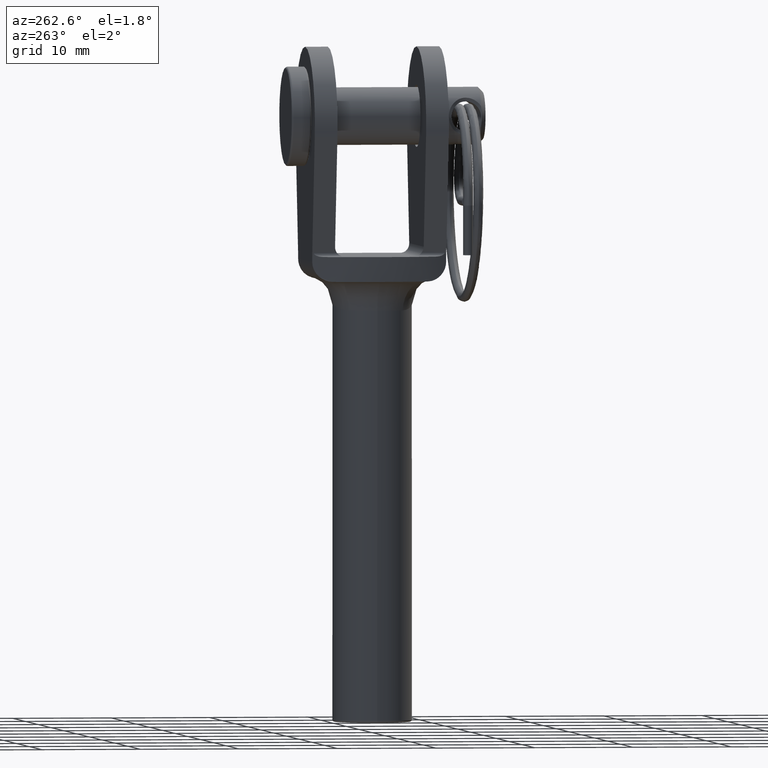
[diagram: clean part render]
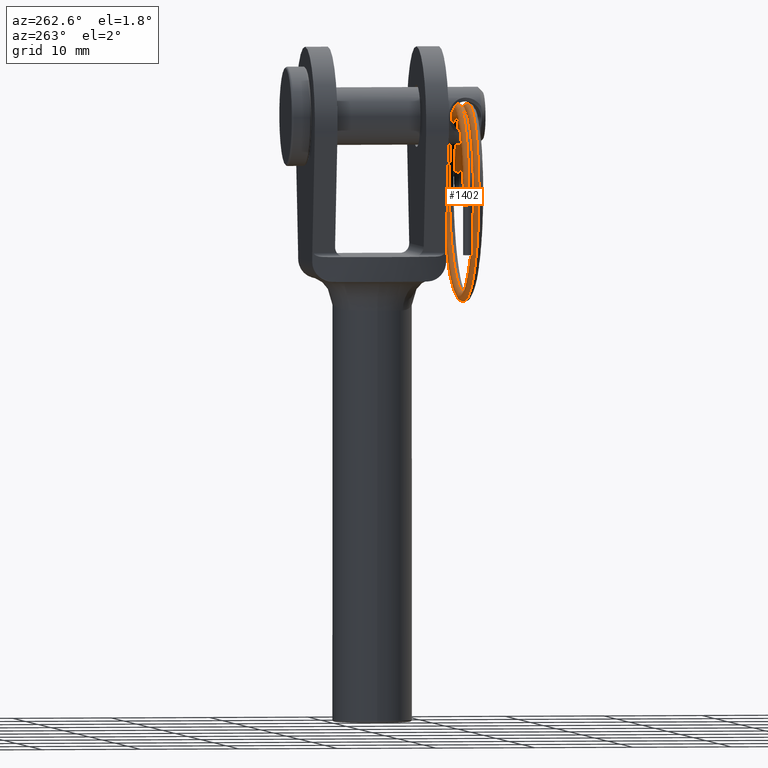
[diagram: same view with one face highlighted and labeled with its STEP entity id]
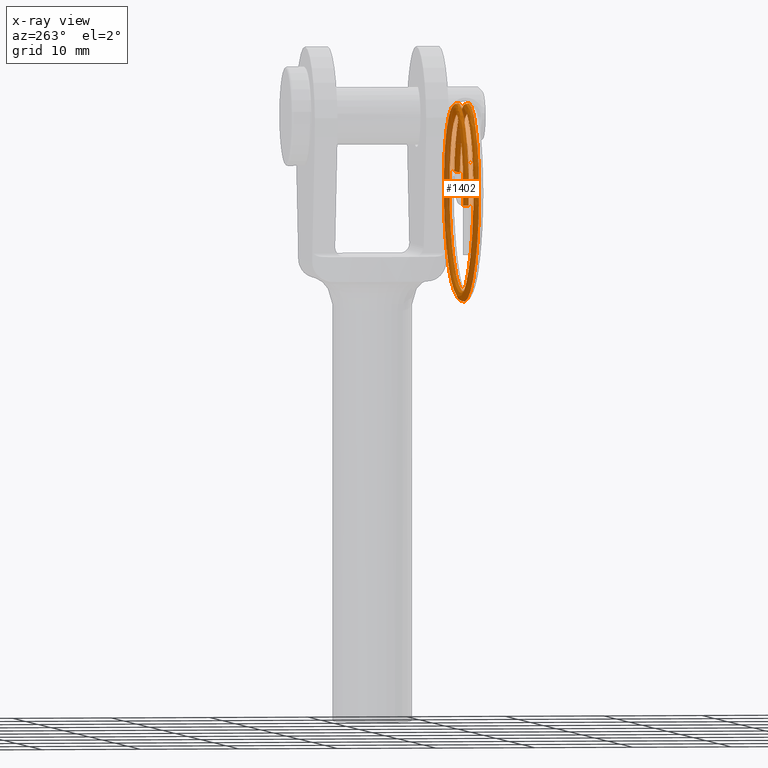
[diagram: x-ray of the same camera — body ghosted, the highlighted face saturated]
A machine part, auxiliary view. The second image highlights one B-rep face of the part: STEP entity #1402.
The next image is the same camera in x-ray: the body ghosted, the highlighted face saturated — about 16% of this face is hidden behind the body in this view.
In plain terms, the highlighted face is a freeform B-spline surface patch.
Its self-contained STEP definition (entity closure, byte-faithful):
#43 = CARTESIAN_POINT ( 'NONE',  ( -9.526527190393672100, 0.3124794089487225600, -3.232752127387700000 ) ) ;
#53 = CARTESIAN_POINT ( 'NONE',  ( -2.781152639615116900, 1.499960401975587000, -8.559508748127640800 ) ) ;
#104 = CARTESIAN_POINT ( 'NONE',  ( -9.990675232906216500, 1.312518363212567900, -1.183389918696478500 ) ) ;
#256 = CARTESIAN_POINT ( 'NONE',  ( -9.047637843815790500, 2.218731313238060800, 4.396961951064572100 ) ) ;
#320 = CARTESIAN_POINT ( 'NONE',  ( -0.6312912117847530000, 0.01039520679325614200, 9.964588052725531500 ) ) ;
#387 = CARTESIAN_POINT ( 'NONE',  ( -9.526527190393672100, 0.3124794089487225600, -3.232752127387700000 ) ) ;
#390 = CARTESIAN_POINT ( 'NONE',  ( 5.583679548705591200, -0.06248457541447530900, 8.367270524351338800 ) ) ;
#500 = CARTESIAN_POINT ( 'NONE',  ( 8.940782321742428700, 1.749980217642971500, -1.420270637209657400 ) ) ;
#522 = CARTESIAN_POINT ( 'NONE',  ( -7.870465707209532100, 0.3436781470122020600, -4.474983592669002700 ) ) ;
#581 = CARTESIAN_POINT ( 'NONE',  ( -3.090169943749286700, 1.499999999999997600, -9.510565162951573700 ) ) ;
#637 = CARTESIAN_POINT ( 'NONE',  ( 2.729725426287876300, 0.5624845630602040000, -9.681722182874771900 ) ) ;
#640 = CARTESIAN_POINT ( 'NONE',  ( 1.882727368571958300, 0.9999366821369730700, 8.855442400798891000 ) ) ;
#703 = CARTESIAN_POINT ( 'NONE',  ( 10.05549059898696400, 0.7812468349823781200, 0.3290222730714590400 ) ) ;
#704 = CARTESIAN_POINT ( 'NONE',  ( 6.356646207203195500, -0.09373273244457429300, 6.448135465817261800 ) ) ;
#707 = CARTESIAN_POINT ( 'NONE',  ( -8.573377009238317500, 0.3125308958612689200, -2.910870501512844200 ) ) ;
#721 = CARTESIAN_POINT ( 'NONE',  ( -1.706238162515887600, 0.03122639539916594700, 8.904254564874811700 ) ) ;
#768 = CARTESIAN_POINT ( 'NONE',  ( 8.646501411896258200, -0.3125060767856751000, -5.140072413504738900 ) ) ;
#781 = CARTESIAN_POINT ( 'NONE',  ( -4.730147352228607700, 1.124928466135248800, 7.719939782192943400 ) ) ;
#829 = CARTESIAN_POINT ( 'NONE',  ( 8.828807248580901000, -0.1875334367714025200, 2.002225641201239800 ) ) ;
#830 = CARTESIAN_POINT ( 'NONE',  ( -8.991763596057174000, 1.312446909484277200, -1.063692989020346800 ) ) ;
#844 = CARTESIAN_POINT ( 'NONE',  ( -5.788654737458347000, 1.437498166480166900, -6.958091932315509700 ) ) ;
#900 = CARTESIAN_POINT ( 'NONE',  ( -0.9431548954388064800, -0.4999762857681815900, -9.004083309525459100 ) ) ;
#918 = CARTESIAN_POINT ( 'NONE',  ( 7.460982642867173300, 0.8749545142179429000, 5.127499651052039200 ) ) ;
#968 = CARTESIAN_POINT ( 'NONE',  ( -8.065286450919428400, 0.1875206070885271100, 6.013188770750518900 ) ) ;
#974 = CARTESIAN_POINT ( 'NONE',  ( -6.999106105373316600, 1.406270579774446400, -5.744669690675241500 ) ) ;
#991 = CARTESIAN_POINT ( 'NONE',  ( 8.295718653762415700, 0.8437552574233463400, 3.628941499976375600 ) ) ;
#1038 = CARTESIAN_POINT ( 'NONE',  ( -6.233073292154665900, 0.1250319116355064200, 6.567526207919813800 ) ) ;
#1040 = CARTESIAN_POINT ( 'NONE',  ( -7.357748984236910600, 1.156214318683852000, 5.274047175420983900 ) ) ;
#1139 = VERTEX_POINT ( 'NONE', #14060 ) ;
#1173 = CARTESIAN_POINT ( 'NONE',  ( -6.994162818379945400, 0.4062705444134502300, -5.750655656324684500 ) ) ;
#1197 = CARTESIAN_POINT ( 'NONE',  ( 1.888108947139127000, 1.999936690303899800, 8.854212468398799300 ) ) ;
#1245 = CARTESIAN_POINT ( 'NONE',  ( -3.303820844297677500, 0.4895673934052750500, -8.356758087099878600 ) ) ;
#1267 = CARTESIAN_POINT ( 'NONE',  ( 6.363791059087949600, 1.906267225906498600, 6.441121269373856400 ) ) ;
#1313 = CARTESIAN_POINT ( 'NONE',  ( -8.990982029173345300, 0.3124469552319351600, -1.070901084148911100 ) ) ;
#1334 = CARTESIAN_POINT ( 'NONE',  ( -3.184132540711955600, 2.093781531725946300, 8.475598160891324900 ) ) ;
#1402 = ADVANCED_FACE ( 'NONE', ( #18030 ), #1817, .F. ) ;
#1443 = CARTESIAN_POINT ( 'NONE',  ( -5.788654737458347000, 1.437498166480166900, -6.958091932315509700 ) ) ;
#1527 = CARTESIAN_POINT ( 'NONE',  ( -7.651613066925256700, 1.374979177438217800, -6.531013211122643500 ) ) ;
#1532 = EDGE_CURVE ( 'NONE', #14319, #1139, #9507, .T. ) ;
#1561 = CARTESIAN_POINT ( 'NONE',  ( -4.684787047735215800, 0.4374796836597965600, -8.902156258950087800 ) ) ;
#1621 = CARTESIAN_POINT ( 'NONE',  ( 0.8558054995179250600, 0.5312671297182846000, -10.02397907762858300 ) ) ;
#1646 = CARTESIAN_POINT ( 'NONE',  ( -10.04647756423826800, 1.249982403640370600, 0.5287739362359744600 ) ) ;
#1678 = CARTESIAN_POINT ( 'NONE',  ( -3.726187637940571800, 0.06246531071177213700, 9.341024720339397900 ) ) ;
#1709 = CARTESIAN_POINT ( 'NONE',  ( 8.642599846551831900, 1.687493953197401800, -5.146578985048528000 ) ) ;
#1740 = CARTESIAN_POINT ( 'NONE',  ( 10.05549059898696400, 0.7812468349823781200, 0.3290222730714590400 ) ) ;
#1772 = CARTESIAN_POINT ( 'NONE',  ( -9.766096403139206600, 0.2187693427616922700, 2.411431198078557900 ) ) ;
#1817 =( BOUNDED_SURFACE ( )  B_SPLINE_SURFACE ( 3, 3, ( 
 ( #12856, #17380, #6775, #18772, #18703, #9731, #11143, #11214, #15868, #5180, #18905, #707, #522, #3538, #14169, #3732, #3667, #3466, #2031, #4983, #15810, #2160, #5047, #3605, #5116, #15740, #15605, #6645, #6709, #17316, #8267, #18637, #9795, #640, #11343, #5246, #8396, #17511, #7115, #17582, #16133, #19176, #19042, #830, #12918, #2508, #974, #11683, #8532, #8668, #10206 ),
 ( #4008, #3877, #13185, #7043, #3802, #10067, #1040, #15933, #10002, #5381, #14549, #11545, #2363, #3947, #13050, #3713, #6757, #17361, #8313, #18886, #9907, #11453, #15983, #3852, #5360, #500, #17813, #8757, #7473, #18074, #1267, #2803, #2664, #1197, #19535, #5868, #1334, #2875, #13532, #19334, #11776, #19268, #2595, #10292, #13328, #6056, #6120, #7543, #7609, #12347, #16806 ),
 ( #16689, #12161, #18137, #10810, #10749, #7801, #18198, #19600, #7672, #1646, #5992, #10684, #9098, #1527, #4732, #3069, #4617, #16750, #18264, #7739, #3195, #10561, #12101, #1709, #4796, #4855, #3533, #12543, #1900, #8068, #15479, #17002, #9343, #1966, #14167, #5044, #4915, #15672, #6572, #12410, #256, #8004, #18439, #17192, #12606, #3261, #6443, #3401, #13905, #12478, #6305 ),
 ( #16935, #320, #17063, #6375, #15542, #9540, #9406, #10942, #1772, #7932, #9471, #387, #11010, #11075, #1837, #3463, #5377, #15997, #8331, #637, #11274, #8263, #15930, #5176, #6773, #18837, #703, #14231, #11212, #15736, #12981, #9728, #18769, #6706, #18902, #12854, #6903, #18969, #8140, #12789, #9791, #14485, #5243, #9854, #3665, #6643, #8204, #14295, #9666, #3728, #581 ),
 ( #12729, #2028, #5113, #17376, #2094, #17256, #15807, #18700, #17315, #14419, #11403, #11339, #2157, #15865, #2221, #17444, #12916, #3799, #5308, #6832, #3874, #8393, #9925, #768, #11471, #16066, #5647, #18052, #15522, #13929, #17022, #390, #1902, #14547, #4004, #17647, #17508, #19039, #11404, #968, #10132, #7039, #16067, #4079, #16198, #14420, #2286, #10064, #9926, #11680, #14613 ),
 ( #5450, #3800, #14486, #6833, #13047, #13183, #2222, #2359, #8528, #8463, #17579, #19111, #18970, #12982, #15931, #17445, #19245, #900, #14686, #2438, #5309, #11472, #17718, #8666, #11606, #5585, #3875, #829, #7111, #10000, #704, #11543, #12917, #8394, #5378, #15998, #6904, #11816, #2639, #8801, #10404, #14887, #7450, #1313, #10203, #14824, #1173, #16536, #16400, #1245, #5714 ),
 ( #16331, #11750, #5786, #4213, #7246, #1038, #17860, #11877, #4406, #18053, #14949, #2709, #2575, #4151, #19378, #17985, #10471, #5914, #9011, #7314, #13372, #17924, #8735, #4280, #13504, #2775, #14758, #5648, #8870, #19446, #19315, #12010, #16265, #7183, #11940, #16471, #19509, #2850, #17793, #10273, #18243, #10666, #12262, #15076, #12078, #7521, #13828, #1443, #12141, #18179, #53 ) ),
 .UNSPECIFIED., .T., .F., .T. ) 
 B_SPLINE_SURFACE_WITH_KNOTS ( ( 4, 3, 4 ),
 ( 4, 1, 1, 1, 1, 1, 1, 1, 1, 1, 1, 1, 1, 1, 1, 1, 1, 1, 1, 1, 1, 1, 1, 1, 1, 1, 1, 1, 1, 1, 1, 1, 1, 1, 1, 1, 1, 1, 1, 1, 1, 1, 1, 1, 1, 1, 1, 1, 4 ),
 ( 0.0000000000000000000, 0.5000000000000000000, 1.000000000000000000 ),
 ( 0.0000000000000000000, 0.02078662395941268200, 0.04166802906245462700, 0.06250803602506177500, 0.08333472735001436200, 0.1041620798152754500, 0.1250035877248450700, 0.1458300008935856400, 0.1666700482452783400, 0.1874959383798049700, 0.2083372916136482500, 0.2291621151275238000, 0.2500037352601566800, 0.2708286126610668900, 0.2916701285288170700, 0.3124953284502115000, 0.3333362649553860400, 0.3541623817524839900, 0.3750022854913117000, 0.3958297863327519500, 0.4166682146689440500, 0.4374975727873713900, 0.4583341010667580900, 0.4791657454941202200, 0.4999999729698805800, 0.5208342005410933100, 0.5416658452465263900, 0.5625023740061369000, 0.5833317327654818900, 0.6041701619750969900, 0.6249976638127605600, 0.6458375688235072900, 0.6666636869681223900, 0.6875046251463349200, 0.7083298267649871200, 0.7291713447047369900, 0.7499962241577717800, 0.7708378467629304300, 0.7916626726821491800, 0.8125040287633996700, 0.8333299216853848900, 0.8541699723072466700, 0.8749963886166373100, 0.8958379000521525800, 0.9166652561002069900, 0.9374919515236801400, 0.9583319624140443900, 0.9792133716431655800, 1.000000000000000000 ),
 .UNSPECIFIED. ) 
 GEOMETRIC_REPRESENTATION_ITEM ( )  RATIONAL_B_SPLINE_SURFACE ( (
 ( 1.000000000000000200, 1.000000000000000200, 0.9999999999999997800, 1.000000000000000200, 1.000000000000000200, 0.9999999999999997800, 1.000000000000000200, 0.9999999999999997800, 1.000000000000000000, 1.000000000000000400, 1.000000000000000000, 1.000000000000000200, 0.9999999999999997800, 1.000000000000000000, 1.000000000000000000, 1.000000000000000000, 1.000000000000000000, 1.000000000000000200, 0.9999999999999997800, 1.000000000000000400, 0.9999999999999997800, 1.000000000000000200, 0.9999999999999997800, 0.9999999999999997800, 1.000000000000000000, 1.000000000000000200, 1.000000000000000000, 1.000000000000000400, 0.9999999999999997800, 1.000000000000000200, 1.000000000000000000, 0.9999999999999997800, 1.000000000000000400, 1.000000000000000200, 0.9999999999999996700, 1.000000000000000200, 0.9999999999999997800, 1.000000000000000000, 0.9999999999999997800, 1.000000000000000200, 1.000000000000000000, 1.000000000000000000, 0.9999999999999997800, 1.000000000000000000, 1.000000000000000200, 1.000000000000000200, 1.000000000000000200, 1.000000000000000000, 1.000000000000000000, 1.000000000000000000, 1.000000000000000000),
 ( 0.3333333333333334300, 0.3333333333333334300, 0.3333333333333333100, 0.3333333333333334300, 0.3333333333333334300, 0.3333333333333333100, 0.3333333333333334800, 0.3333333333333333100, 0.3333333333333334300, 0.3333333333333334300, 0.3333333333333333700, 0.3333333333333334300, 0.3333333333333332600, 0.3333333333333333700, 0.3333333333333334300, 0.3333333333333333100, 0.3333333333333333100, 0.3333333333333334300, 0.3333333333333332600, 0.3333333333333335900, 0.3333333333333332600, 0.3333333333333334300, 0.3333333333333333700, 0.3333333333333332600, 0.3333333333333334300, 0.3333333333333333700, 0.3333333333333333700, 0.3333333333333333700, 0.3333333333333333100, 0.3333333333333334300, 0.3333333333333333700, 0.3333333333333333100, 0.3333333333333334800, 0.3333333333333333700, 0.3333333333333333700, 0.3333333333333333100, 0.3333333333333333700, 0.3333333333333333100, 0.3333333333333333700, 0.3333333333333334300, 0.3333333333333333700, 0.3333333333333333100, 0.3333333333333333700, 0.3333333333333333700, 0.3333333333333334300, 0.3333333333333333700, 0.3333333333333334300, 0.3333333333333333100, 0.3333333333333334300, 0.3333333333333333700, 0.3333333333333333700),
 ( 0.3333333333333334300, 0.3333333333333334300, 0.3333333333333333100, 0.3333333333333334300, 0.3333333333333334300, 0.3333333333333333100, 0.3333333333333334800, 0.3333333333333333100, 0.3333333333333334300, 0.3333333333333334300, 0.3333333333333333700, 0.3333333333333334300, 0.3333333333333332600, 0.3333333333333333700, 0.3333333333333334300, 0.3333333333333333100, 0.3333333333333333100, 0.3333333333333334300, 0.3333333333333332600, 0.3333333333333335900, 0.3333333333333332600, 0.3333333333333334300, 0.3333333333333333700, 0.3333333333333332600, 0.3333333333333334300, 0.3333333333333333700, 0.3333333333333333700, 0.3333333333333333700, 0.3333333333333333100, 0.3333333333333334300, 0.3333333333333333700, 0.3333333333333333100, 0.3333333333333334800, 0.3333333333333333700, 0.3333333333333333700, 0.3333333333333333100, 0.3333333333333333700, 0.3333333333333333100, 0.3333333333333333700, 0.3333333333333334300, 0.3333333333333333700, 0.3333333333333333100, 0.3333333333333333700, 0.3333333333333333700, 0.3333333333333334300, 0.3333333333333333700, 0.3333333333333334300, 0.3333333333333333100, 0.3333333333333334300, 0.3333333333333333700, 0.3333333333333333700),
 ( 1.000000000000000200, 1.000000000000000200, 0.9999999999999997800, 1.000000000000000200, 1.000000000000000200, 0.9999999999999997800, 1.000000000000000200, 0.9999999999999997800, 1.000000000000000000, 1.000000000000000400, 1.000000000000000000, 1.000000000000000200, 0.9999999999999997800, 1.000000000000000000, 1.000000000000000000, 1.000000000000000000, 1.000000000000000000, 1.000000000000000200, 0.9999999999999997800, 1.000000000000000400, 0.9999999999999997800, 1.000000000000000200, 0.9999999999999997800, 0.9999999999999997800, 1.000000000000000000, 1.000000000000000200, 1.000000000000000000, 1.000000000000000400, 0.9999999999999997800, 1.000000000000000200, 1.000000000000000000, 0.9999999999999997800, 1.000000000000000400, 1.000000000000000200, 0.9999999999999996700, 1.000000000000000200, 0.9999999999999997800, 1.000000000000000000, 0.9999999999999997800, 1.000000000000000200, 1.000000000000000000, 1.000000000000000000, 0.9999999999999997800, 1.000000000000000000, 1.000000000000000200, 1.000000000000000200, 1.000000000000000200, 1.000000000000000000, 1.000000000000000000, 1.000000000000000000, 1.000000000000000000),
 ( 0.3333333333333334300, 0.3333333333333334300, 0.3333333333333333100, 0.3333333333333334300, 0.3333333333333334300, 0.3333333333333333100, 0.3333333333333334800, 0.3333333333333333100, 0.3333333333333334300, 0.3333333333333334300, 0.3333333333333333700, 0.3333333333333334300, 0.3333333333333332600, 0.3333333333333333700, 0.3333333333333334300, 0.3333333333333333100, 0.3333333333333333100, 0.3333333333333334300, 0.3333333333333332600, 0.3333333333333335900, 0.3333333333333332600, 0.3333333333333334300, 0.3333333333333333700, 0.3333333333333332600, 0.3333333333333334300, 0.3333333333333333700, 0.3333333333333333700, 0.3333333333333333700, 0.3333333333333333100, 0.3333333333333334300, 0.3333333333333333700, 0.3333333333333333100, 0.3333333333333334800, 0.3333333333333333700, 0.3333333333333333700, 0.3333333333333333100, 0.3333333333333333700, 0.3333333333333333100, 0.3333333333333333700, 0.3333333333333334300, 0.3333333333333333700, 0.3333333333333333100, 0.3333333333333333700, 0.3333333333333333700, 0.3333333333333334300, 0.3333333333333333700, 0.3333333333333334300, 0.3333333333333333100, 0.3333333333333334300, 0.3333333333333333700, 0.3333333333333333700),
 ( 0.3333333333333334300, 0.3333333333333334300, 0.3333333333333333100, 0.3333333333333334300, 0.3333333333333334300, 0.3333333333333333100, 0.3333333333333334800, 0.3333333333333333100, 0.3333333333333334300, 0.3333333333333334300, 0.3333333333333333700, 0.3333333333333334300, 0.3333333333333332600, 0.3333333333333333700, 0.3333333333333334300, 0.3333333333333333100, 0.3333333333333333100, 0.3333333333333334300, 0.3333333333333332600, 0.3333333333333335900, 0.3333333333333332600, 0.3333333333333334300, 0.3333333333333333700, 0.3333333333333332600, 0.3333333333333334300, 0.3333333333333333700, 0.3333333333333333700, 0.3333333333333333700, 0.3333333333333333100, 0.3333333333333334300, 0.3333333333333333700, 0.3333333333333333100, 0.3333333333333334800, 0.3333333333333333700, 0.3333333333333333700, 0.3333333333333333100, 0.3333333333333333700, 0.3333333333333333100, 0.3333333333333333700, 0.3333333333333334300, 0.3333333333333333700, 0.3333333333333333100, 0.3333333333333333700, 0.3333333333333333700, 0.3333333333333334300, 0.3333333333333333700, 0.3333333333333334300, 0.3333333333333333100, 0.3333333333333334300, 0.3333333333333333700, 0.3333333333333333700),
 ( 1.000000000000000200, 1.000000000000000200, 0.9999999999999997800, 1.000000000000000200, 1.000000000000000200, 0.9999999999999997800, 1.000000000000000200, 0.9999999999999997800, 1.000000000000000000, 1.000000000000000400, 1.000000000000000000, 1.000000000000000200, 0.9999999999999997800, 1.000000000000000000, 1.000000000000000000, 1.000000000000000000, 1.000000000000000000, 1.000000000000000200, 0.9999999999999997800, 1.000000000000000400, 0.9999999999999997800, 1.000000000000000200, 0.9999999999999997800, 0.9999999999999997800, 1.000000000000000000, 1.000000000000000200, 1.000000000000000000, 1.000000000000000400, 0.9999999999999997800, 1.000000000000000200, 1.000000000000000000, 0.9999999999999997800, 1.000000000000000400, 1.000000000000000200, 0.9999999999999996700, 1.000000000000000200, 0.9999999999999997800, 1.000000000000000000, 0.9999999999999997800, 1.000000000000000200, 1.000000000000000000, 1.000000000000000000, 0.9999999999999997800, 1.000000000000000000, 1.000000000000000200, 1.000000000000000200, 1.000000000000000200, 1.000000000000000000, 1.000000000000000000, 1.000000000000000000, 1.000000000000000000) ) ) 
 REPRESENTATION_ITEM ( '' )  SURFACE ( )  );
#1837 = CARTESIAN_POINT ( 'NONE',  ( -6.278838702542688400, 0.4062706764652279600, -7.859973476292971400 ) ) ;
#1900 = CARTESIAN_POINT ( 'NONE',  ( 9.219619689437426000, 1.843741112482237200, 4.027170542189053600 ) ) ;
#1902 = CARTESIAN_POINT ( 'NONE',  ( 3.906560447215133600, -0.03126711259966110500, 9.270970650103452100 ) ) ;
#1966 = CARTESIAN_POINT ( 'NONE',  ( 2.095945367542423600, 2.000018454613384100, 9.838516992778849600 ) ) ;
#1985 = CARTESIAN_POINT ( 'NONE',  ( -4.881345175319633100, 0.09368982196272836200, 7.626348108011099700 ) ) ;
#2028 = CARTESIAN_POINT ( 'NONE',  ( -0.6313482573111520700, -0.9896047934751329700, 9.964583986354380600 ) ) ;
#2031 = CARTESIAN_POINT ( 'NONE',  ( 0.7689549992287204600, 0.5311849225733105100, -9.021691138404982300 ) ) ;
#2094 = CARTESIAN_POINT ( 'NONE',  ( -5.424945477515128900, -0.9062289054685397400, 8.473164484891517700 ) ) ;
#2157 = CARTESIAN_POINT ( 'NONE',  ( -8.743356689331395900, -0.6562289670335406100, -4.975333281848132400 ) ) ;
#2160 = CARTESIAN_POINT ( 'NONE',  ( 5.511331897676636300, 0.6250058879540323400, -7.182112179894434500 ) ) ;
#2221 = CARTESIAN_POINT ( 'NONE',  ( -6.277146983918826500, -0.5937293190950723200, -7.861450608238261100 ) ) ;
#2222 = CARTESIAN_POINT ( 'NONE',  ( -7.358837532714143300, -0.8437856849260732000, 5.272710342607474000 ) ) ;
#2239 = CARTESIAN_POINT ( 'NONE',  ( -6.233073292154665900, 0.1250319116355064200, 6.567526207919813800 ) ) ;
#2286 = CARTESIAN_POINT ( 'NONE',  ( -7.772440574663726000, 0.4062288700000943300, -6.388384494607064900 ) ) ;
#2309 = CARTESIAN_POINT ( 'NONE',  ( -9.029966426231789400, 1.281278273017525800, 0.6508481445457045000 ) ) ;
#2359 = CARTESIAN_POINT ( 'NONE',  ( -8.223394524031650800, -0.8124865013799436000, 3.789288586087539400 ) ) ;
#2363 = CARTESIAN_POINT ( 'NONE',  ( -7.871317287414645300, 1.343678145136112800, -4.473284485158513000 ) ) ;
#2378 = CARTESIAN_POINT ( 'NONE',  ( -0.9459017191797165500, 0.5000237201497201900, -9.003820986950030300 ) ) ;
#2438 = CARTESIAN_POINT ( 'NONE',  ( 2.460716509868805100, -0.4374840822398048900, -8.712332320241225500 ) ) ;
#2453 = CARTESIAN_POINT ( 'NONE',  ( 5.511331897676636300, 0.6250058879540323400, -7.182112179894434500 ) ) ;
#2508 = CARTESIAN_POINT ( 'NONE',  ( -7.957482012187854900, 1.374928490852681100, -4.319963335148711000 ) ) ;
#2575 = CARTESIAN_POINT ( 'NONE',  ( -7.870465707209532100, 0.3436781470122020600, -4.474983592669002700 ) ) ;
#2595 = CARTESIAN_POINT ( 'NONE',  ( -9.029484108790192900, 2.281278291363225000, 0.6579040645790095200 ) ) ;
#2639 = CARTESIAN_POINT ( 'NONE',  ( -6.107106743613266900, 0.1562822531058336000, 6.683744558439721000 ) ) ;
#2664 = CARTESIAN_POINT ( 'NONE',  ( 3.524114075254706400, 1.968775462287343500, 8.340459636515602100 ) ) ;
#2709 = CARTESIAN_POINT ( 'NONE',  ( -8.573377009238317500, 0.3125308958612689200, -2.910870501512844200 ) ) ;
#2775 = CARTESIAN_POINT ( 'NONE',  ( 8.941460127244296200, 0.7499802010604794700, -1.416187987906836900 ) ) ;
#2803 = CARTESIAN_POINT ( 'NONE',  ( 5.034227427016848100, 1.937444487846879900, 7.524317834318335200 ) ) ;
#2850 = CARTESIAN_POINT ( 'NONE',  ( -4.730147352228607700, 1.124928466135248800, 7.719939782192943400 ) ) ;
#2875 = CARTESIAN_POINT ( 'NONE',  ( -4.724803075505682200, 2.124928461910487300, 7.723106482397467300 ) ) ;
#3069 = CARTESIAN_POINT ( 'NONE',  ( -4.686939727177701800, 1.437479686277882000, -8.901061429221707400 ) ) ;
#3103 = CARTESIAN_POINT ( 'NONE',  ( 0.1984864423857848600, 1.031230423354526200, 10.05825893749144100 ) ) ;
#3165 = CARTESIAN_POINT ( 'NONE',  ( 5.587939830964588200, 0.9375154371902310000, 8.364333432486429100 ) ) ;
#3195 = CARTESIAN_POINT ( 'NONE',  ( 4.506304858695783900, 1.593763541271970800, -8.994897291469969900 ) ) ;
#3231 = CARTESIAN_POINT ( 'NONE',  ( 9.461666387506088700, 0.7187531651498734200, -3.420236251030728700 ) ) ;
#3261 = CARTESIAN_POINT ( 'NONE',  ( -8.844974632555215900, 2.375002276111531300, -4.793544483750505200 ) ) ;
#3296 = CARTESIAN_POINT ( 'NONE',  ( 9.935051895465733200, 0.7500000000732757200, -1.573557629536798100 ) ) ;
#3367 = CARTESIAN_POINT ( 'NONE',  ( 4.509272481007771600, 0.5937635568442941600, -8.993495772299672500 ) ) ;
#3401 = CARTESIAN_POINT ( 'NONE',  ( -6.436432651071313200, 2.437534613860578200, -7.727286142551578900 ) ) ;
#3463 = CARTESIAN_POINT ( 'NONE',  ( -4.684787047735215800, 0.4374796836597965600, -8.902156258950087800 ) ) ;
#3466 = CARTESIAN_POINT ( 'NONE',  ( -0.9459017191797165500, 0.5000237201497201900, -9.003820986950030300 ) ) ;
#3511 = AXIS2_PLACEMENT_3D ( 'NONE', #5871, #15036, #13404 ) ;
#3533 = CARTESIAN_POINT ( 'NONE',  ( 10.05561206852515700, 1.781246811846270500, 0.3247072871793588200 ) ) ;
#3538 = CARTESIAN_POINT ( 'NONE',  ( -6.884229820991699900, 0.3750319362681563400, -5.880403383129294800 ) ) ;
#3605 = CARTESIAN_POINT ( 'NONE',  ( 7.780224041492120400, 0.6874938220752927500, -4.628603211763562300 ) ) ;
#3621 = CARTESIAN_POINT ( 'NONE',  ( -3.355169466453536800, 0.06246223568073175400, 8.406331235056333300 ) ) ;
#3665 = CARTESIAN_POINT ( 'NONE',  ( -9.586727305867809100, 1.343742039678767200, -3.045199764366748300 ) ) ;
#3667 = CARTESIAN_POINT ( 'NONE',  ( -2.628818551986363600, 0.4686798203240101800, -8.664151728819144100 ) ) ;
#3713 = CARTESIAN_POINT ( 'NONE',  ( -4.217187738372048000, 1.437529053625931300, -8.011453840772061200 ) ) ;
#3728 = CARTESIAN_POINT ( 'NONE',  ( -3.679620669332238900, 1.489604793235655100, -9.281806687832103700 ) ) ;
#3732 = CARTESIAN_POINT ( 'NONE',  ( -4.215035058929562000, 0.4375290510078457800, -8.012548670500445200 ) ) ;
#3799 = CARTESIAN_POINT ( 'NONE',  ( -1.049657863584944700, -0.5000184520527104500, -10.00443749531155100 ) ) ;
#3800 = CARTESIAN_POINT ( 'NONE',  ( -0.5679399710307473400, -0.9896069981882537100, 8.968129222991919400 ) ) ;
#3802 = CARTESIAN_POINT ( 'NONE',  ( -4.880861677423599300, 1.093689821833119200, 7.626549127271423400 ) ) ;
#3817 = CARTESIAN_POINT ( 'NONE',  ( -8.222976295312220100, 0.1875134928926045800, 3.790239590817074500 ) ) ;
#3852 = CARTESIAN_POINT ( 'NONE',  ( 7.778273258819908200, 1.687493837066831500, -4.631856497535458100 ) ) ;
#3874 = CARTESIAN_POINT ( 'NONE',  ( 4.512240103319759200, -0.4062364275833824100, -8.992094253129376800 ) ) ;
#3875 = CARTESIAN_POINT ( 'NONE',  ( 9.049835541732269600, -0.2187605054335854900, 0.3006902962895976500 ) ) ;
#3877 = CARTESIAN_POINT ( 'NONE',  ( -0.5678258799779493100, 1.010393002348524400, 8.968137355734221200 ) ) ;
#3893 = CARTESIAN_POINT ( 'NONE',  ( 7.780224041492120400, 0.6874938220752927500, -4.628603211763562300 ) ) ;
#3898 = VERTEX_POINT ( 'NONE', #7857 ) ;
#3947 = CARTESIAN_POINT ( 'NONE',  ( -6.885602798673200000, 1.375031936593693800, -5.878853021946741600 ) ) ;
#3961 = CARTESIAN_POINT ( 'NONE',  ( 6.360218633145572100, 0.9062672467309624800, 6.444628367595558200 ) ) ;
#4004 = CARTESIAN_POINT ( 'NONE',  ( 0.1927920751217732400, 0.03123043532194385800, 10.05834148079603100 ) ) ;
#4008 = CARTESIAN_POINT ( 'NONE',  ( 0.0000000000000000000, 1.000000000000001300, 8.999999999999998200 ) ) ;
#4029 = CARTESIAN_POINT ( 'NONE',  ( -8.991763596057174000, 1.312446909484277200, -1.063692989020346800 ) ) ;
#4079 = CARTESIAN_POINT ( 'NONE',  ( -9.989893666022387800, 0.3125184089602253100, -1.190598013825042900 ) ) ;
#4099 = CARTESIAN_POINT ( 'NONE',  ( 2.457733664872741500, 0.5625159269830326500, -8.713190082205677800 ) ) ;
#4151 = CARTESIAN_POINT ( 'NONE',  ( -6.884229820991699900, 0.3750319362681563400, -5.880403383129294800 ) ) ;
#4213 = CARTESIAN_POINT ( 'NONE',  ( -3.355169466453536800, 0.06246223568073175400, 8.406331235056333300 ) ) ;
#4280 = CARTESIAN_POINT ( 'NONE',  ( 7.780224041492120400, 0.6874938220752927500, -4.628603211763562300 ) ) ;
#4406 = CARTESIAN_POINT ( 'NONE',  ( -8.789131627125950500, 0.2186821287294710100, 2.171419409405071800 ) ) ;
#4459 = CARTESIAN_POINT ( 'NONE',  ( 0.0000000000000000000, 6.123233995736778400E-017, 9.999999999999998200 ) ) ;
#4617 = CARTESIAN_POINT ( 'NONE',  ( -2.921851458395287700, 1.468769568670389900, -9.626465124499269200 ) ) ;
#4651 = CARTESIAN_POINT ( 'NONE',  ( -9.964452982643266000, 0.2812686956734655200, -1.379218814049087500 ) ) ;
#4732 = CARTESIAN_POINT ( 'NONE',  ( -6.280530421166548500, 1.406270672025528000, -7.858496344347671900 ) ) ;
#4765 = CARTESIAN_POINT ( 'NONE',  ( 8.289586969841277400, 0.8750112791065667300, 5.697965438482227400 ) ) ;
#4796 = CARTESIAN_POINT ( 'NONE',  ( 9.460276604789884300, 1.718753143345264100, -3.423957009862710300 ) ) ;
#4825 = CARTESIAN_POINT ( 'NONE',  ( -6.925332975917248400, 0.1249977181845210300, 7.297464736043108900 ) ) ;
#4855 = CARTESIAN_POINT ( 'NONE',  ( 9.934374089963858600, 1.750000016655768300, -1.577640278839618700 ) ) ;
#4890 = CARTESIAN_POINT ( 'NONE',  ( 9.810831252786867300, 0.8125060619543861300, 2.220280378046660500 ) ) ;
#4915 = CARTESIAN_POINT ( 'NONE',  ( -3.537023781777314500, 2.093729317957436100, 9.417702520438815800 ) ) ;
#4983 = CARTESIAN_POINT ( 'NONE',  ( 2.457733664872741900, 0.5625159269830326500, -8.713190082205677800 ) ) ;
#5044 = CARTESIAN_POINT ( 'NONE',  ( -1.698783706150804200, 2.062520318600836500, 9.915037259888782400 ) ) ;
#5047 = CARTESIAN_POINT ( 'NONE',  ( 6.768292910440831800, 0.6562051446594123800, -6.014846256379471800 ) ) ;
#5113 = CARTESIAN_POINT ( 'NONE',  ( -1.896923541952731500, -0.9687669812149899400, 9.893590472027890200 ) ) ;
#5116 = CARTESIAN_POINT ( 'NONE',  ( 8.515435694472360600, 0.7187209306791481100, -3.078459869792788100 ) ) ;
#5176 = CARTESIAN_POINT ( 'NONE',  ( 8.644550629224045900, 0.6874939382058631300, -5.143325699276633000 ) ) ;
#5180 = CARTESIAN_POINT ( 'NONE',  ( -9.041931161479505300, 0.2500311046713567500, 0.4733560184837288200 ) ) ;
#5243 = CARTESIAN_POINT ( 'NONE',  ( -10.03328284269142200, 1.281230657010413300, 0.7244824161665107700 ) ) ;
#5246 = CARTESIAN_POINT ( 'NONE',  ( -1.532723195147860400, 1.062431351339630800, 8.922904033302131700 ) ) ;
#5308 = CARTESIAN_POINT ( 'NONE',  ( 0.8587377566013000300, -0.4687328586024741000, -10.02381752604162200 ) ) ;
#5309 = CARTESIAN_POINT ( 'NONE',  ( 4.060395607315453700, -0.4063068291224105600, -8.093219783243418100 ) ) ;
#5325 = CARTESIAN_POINT ( 'NONE',  ( -9.041931161479505300, 0.2500311046713567500, 0.4733560184837288200 ) ) ;
#5360 = CARTESIAN_POINT ( 'NONE',  ( 8.514045911756154400, 1.718720908874539200, -3.082180628624769700 ) ) ;
#5377 = CARTESIAN_POINT ( 'NONE',  ( -2.919401124321849800, 0.4687695765840664800, -9.627308387679468300 ) ) ;
#5378 = CARTESIAN_POINT ( 'NONE',  ( 0.1715204199104995400, 0.03128059355828752300, 9.052530115250760900 ) ) ;
#5381 = CARTESIAN_POINT ( 'NONE',  ( -9.041893375751673300, 1.250031103120694800, 0.4747376748821625600 ) ) ;
#5450 = CARTESIAN_POINT ( 'NONE',  ( 0.0000000000000000000, -1.000000000000001300, 8.999999999999998200 ) ) ;
#5535 = CARTESIAN_POINT ( 'NONE',  ( -7.957482012187854900, 1.374928490852681100, -4.319963335148711000 ) ) ;
#5585 = CARTESIAN_POINT ( 'NONE',  ( 8.942137932746172500, -0.2500198155220123000, -1.412105338604016800 ) ) ;
#5601 = CARTESIAN_POINT ( 'NONE',  ( -8.627716307842304000, 1.343746085032020200, -2.741443874475559800 ) ) ;
#5647 = CARTESIAN_POINT ( 'NONE',  ( 10.05536912944876700, -0.2187531418815136500, 0.3333372589635588100 ) ) ;
#5648 = CARTESIAN_POINT ( 'NONE',  ( 8.829749751769531600, 0.8124665800593984200, 1.997842125452919900 ) ) ;
#5668 = CARTESIAN_POINT ( 'NONE',  ( 6.768292910440831800, 0.6562051446594123800, -6.014846256379471800 ) ) ;
#5714 = CARTESIAN_POINT ( 'NONE',  ( -2.773336166224456900, 0.4999604027596936100, -8.562090115756964400 ) ) ;
#5786 = CARTESIAN_POINT ( 'NONE',  ( -1.706238162515887600, 0.03122639539916594700, 8.904254564874811700 ) ) ;
#5868 = CARTESIAN_POINT ( 'NONE',  ( -1.526927200648423100, 2.062431353228168600, 8.923808765297225800 ) ) ;
#5871 = CARTESIAN_POINT ( 'NONE',  ( 0.0000000000000000000, 0.0000000000000000000, 9.499999999999998200 ) ) ;
#5914 = CARTESIAN_POINT ( 'NONE',  ( -0.9459017191797165500, 0.5000237201497201900, -9.003820986950030300 ) ) ;
#5992 = CARTESIAN_POINT ( 'NONE',  ( -9.964577589473195800, 1.281268696031002200, -1.377669373102446300 ) ) ;
#6030 = EDGE_CURVE ( 'NONE', #14319, #19072, #13445, .T. ) ;
#6056 = CARTESIAN_POINT ( 'NONE',  ( -7.961032986058332200, 2.374928484636499100, -4.313251983356763300 ) ) ;
#6120 = CARTESIAN_POINT ( 'NONE',  ( -7.004049392366686900, 2.406270615135440900, -5.738683725025795800 ) ) ;
#6153 = CARTESIAN_POINT ( 'NONE',  ( -5.424461979619095200, 0.09377109440185085700, 8.473365504151839600 ) ) ;
#6212 = CARTESIAN_POINT ( 'NONE',  ( -6.278838702542688400, 0.4062706764652279600, -7.859973476292971400 ) ) ;
#6275 = CARTESIAN_POINT ( 'NONE',  ( -8.176500993558157400, 0.1562579602574368200, 5.858618740014832400 ) ) ;
#6305 = CARTESIAN_POINT ( 'NONE',  ( -3.097986417139945400, 2.499999999215890800, -9.507983795322244800 ) ) ;
#6375 = CARTESIAN_POINT ( 'NONE',  ( -3.726187637940571400, 0.06246531071177213700, 9.341024720339397900 ) ) ;
#6443 = CARTESIAN_POINT ( 'NONE',  ( -7.782327148650472800, 2.406228940722086000, -6.376412563308176300 ) ) ;
#6572 = CARTESIAN_POINT ( 'NONE',  ( -6.774603971553347900, 2.156228970425945400, 7.436641343920674900 ) ) ;
#6643 = CARTESIAN_POINT ( 'NONE',  ( -8.841423658684743000, 1.375002282327714800, -4.800255835542454700 ) ) ;
#6645 = CARTESIAN_POINT ( 'NONE',  ( 8.829749751769531600, 0.8124665800593984200, 1.997842125452919900 ) ) ;
#6706 = CARTESIAN_POINT ( 'NONE',  ( 2.090563788975254900, 1.000018446446456500, 9.839746925178944900 ) ) ;
#6709 = CARTESIAN_POINT ( 'NONE',  ( 8.295718653762415700, 0.8437552574233463400, 3.628941499976375600 ) ) ;
#6721 = CARTESIAN_POINT ( 'NONE',  ( -3.082353470358626600, 0.5000000007841041100, -9.513146530580899100 ) ) ;
#6757 = CARTESIAN_POINT ( 'NONE',  ( -2.631268886059801900, 1.468679812410333500, -8.663308465638945000 ) ) ;
#6773 = CARTESIAN_POINT ( 'NONE',  ( 9.461666387506088700, 0.7187531651498734200, -3.420236251030728700 ) ) ;
#6775 = CARTESIAN_POINT ( 'NONE',  ( -1.706238162515887600, 0.03122639539916594700, 8.904254564874811700 ) ) ;
#6832 = CARTESIAN_POINT ( 'NONE',  ( 2.732708271283941200, -0.4375154461626337100, -9.680864420910321400 ) ) ;
#6833 = CARTESIAN_POINT ( 'NONE',  ( -3.355500091221975900, -0.9375377612662138000, 8.406214874498818500 ) ) ;
#6903 = CARTESIAN_POINT ( 'NONE',  ( -3.542665077047762300, 1.093729323417855600, 9.415546859168610900 ) ) ;
#6904 = CARTESIAN_POINT ( 'NONE',  ( -3.195415131252848700, 0.09378154264678333100, 8.471286838350913200 ) ) ;
#6921 = CARTESIAN_POINT ( 'NONE',  ( 0.1772147871745111100, 1.031280581590869700, 9.052447571946173000 ) ) ;
#6986 = CARTESIAN_POINT ( 'NONE',  ( -8.146028725348941200, 1.218773004296065800, 3.950577605524714800 ) ) ;
#7039 = CARTESIAN_POINT ( 'NONE',  ( -9.719649276201135300, 0.2500176097399413600, 2.596319502947644200 ) ) ;
#7043 = CARTESIAN_POINT ( 'NONE',  ( -3.354838841685098000, 1.062462232627677100, 8.406447595613844500 ) ) ;
#7058 = CARTESIAN_POINT ( 'NONE',  ( -2.781152639615116900, 1.499960401975587000, -8.559508748127640800 ) ) ;
#7111 = CARTESIAN_POINT ( 'NONE',  ( 8.293851372971929000, -0.1562447197408138000, 3.633212699945126600 ) ) ;
#7115 = CARTESIAN_POINT ( 'NONE',  ( -6.102411951552954700, 1.156282254792761100, 6.688069746710361600 ) ) ;
#7183 = CARTESIAN_POINT ( 'NONE',  ( 1.882727368571958300, 0.9999366821369730700, 8.855442400798891000 ) ) ;
#7246 = CARTESIAN_POINT ( 'NONE',  ( -4.881345175319633100, 0.09368982196272837600, 7.626348108011099700 ) ) ;
#7314 = CARTESIAN_POINT ( 'NONE',  ( 2.457733664872741900, 0.5625159269830326500, -8.713190082205677800 ) ) ;
#7450 = CARTESIAN_POINT ( 'NONE',  ( -9.030448743673375100, 0.2812782546718248200, 0.6437922245123990400 ) ) ;
#7473 = CARTESIAN_POINT ( 'NONE',  ( 8.297585934552898800, 1.843755234587505900, 3.624670300007624600 ) ) ;
#7521 = CARTESIAN_POINT ( 'NONE',  ( -7.957482012187854900, 1.374928490852681100, -4.319963335148711000 ) ) ;
#7543 = CARTESIAN_POINT ( 'NONE',  ( -5.794736978546441500, 2.437498090870135100, -6.952990941811129300 ) ) ;
#7609 = CARTESIAN_POINT ( 'NONE',  ( -4.381380159973764100, 2.468734027966101400, -7.937228028590935100 ) ) ;
#7643 = CARTESIAN_POINT ( 'NONE',  ( -9.766096403139206600, 0.2187693427616922700, 2.411431198078557900 ) ) ;
#7672 = CARTESIAN_POINT ( 'NONE',  ( -9.765714256015927600, 1.218769343648024300, 2.412579800819240300 ) ) ;
#7706 = CARTESIAN_POINT ( 'NONE',  ( -3.542665077047762300, 1.093729323417855600, 9.415546859168610900 ) ) ;
#7712 = EDGE_CURVE ( 'NONE', #1139, #3898, #11504, .T. ) ;
#7739 = CARTESIAN_POINT ( 'NONE',  ( 2.726742581291814000, 1.562484572283040900, -9.682579944839226000 ) ) ;
#7801 = CARTESIAN_POINT ( 'NONE',  ( -6.924846470536425400, 1.124997718544445500, 7.297957054028314500 ) ) ;
#7837 = CARTESIAN_POINT ( 'NONE',  ( -9.050555883633206700, 1.218731304152575100, 4.390900360989493700 ) ) ;
#7857 = CARTESIAN_POINT ( 'NONE',  ( -2.781152639615116900, 1.499960401975587000, -8.559508748127640800 ) ) ;
#7900 = CARTESIAN_POINT ( 'NONE',  ( -2.919401124321849800, 0.4687695765840664800, -9.627308387679468300 ) ) ;
#7932 = CARTESIAN_POINT ( 'NONE',  ( -10.04651534996609800, 0.2499824051910326800, 0.5273922798375410000 ) ) ;
#8004 = CARTESIAN_POINT ( 'NONE',  ( -9.715904872818043700, 2.250017580873744800, 2.609608665148242900 ) ) ;
#8068 = CARTESIAN_POINT ( 'NONE',  ( 8.292269888571537400, 1.875011294649288700, 5.693950271923767100 ) ) ;
#8140 = CARTESIAN_POINT ( 'NONE',  ( -6.779298763613664600, 1.156228968739019900, 7.432316155650037000 ) ) ;
#8204 = CARTESIAN_POINT ( 'NONE',  ( -7.777383861657098900, 1.406228905361090100, -6.382398528957618400 ) ) ;
#8263 = CARTESIAN_POINT ( 'NONE',  ( 6.123097560830412800, 0.6249887210908450200, -7.980710402791696200 ) ) ;
#8267 = CARTESIAN_POINT ( 'NONE',  ( 6.360218633145572100, 0.9062672467309624800, 6.444628367595558200 ) ) ;
#8313 = CARTESIAN_POINT ( 'NONE',  ( 0.7660227421453454900, 1.531184910894068900, -9.021852689991940000 ) ) ;
#8331 = CARTESIAN_POINT ( 'NONE',  ( 0.8558054995179250600, 0.5312671297182846000, -10.02397907762858300 ) ) ;
#8348 = CARTESIAN_POINT ( 'NONE',  ( 0.0000000000000000000, 0.0000000000000000000, 8.999999999999998200 ) ) ;
#8393 = CARTESIAN_POINT ( 'NONE',  ( 6.125831732485056400, -0.3750112913138624600, -7.978609057108343400 ) ) ;
#8394 = CARTESIAN_POINT ( 'NONE',  ( 1.877345790004790100, -6.332602995405025000E-005, 8.856672333198984500 ) ) ;
#8396 = CARTESIAN_POINT ( 'NONE',  ( -3.189773835982403900, 1.093781537186365100, 8.473442499621121700 ) ) ;
#8413 = CARTESIAN_POINT ( 'NONE',  ( -6.884229820991699900, 0.3750319362681563400, -5.880403383129294800 ) ) ;
#8463 = CARTESIAN_POINT ( 'NONE',  ( -9.041968947207339000, -0.7499688937779810400, 0.4719743620852954700 ) ) ;
#8482 = CARTESIAN_POINT ( 'NONE',  ( 9.049957011270466400, 0.7812394714303064800, 0.2963753103974973200 ) ) ;
#8528 = CARTESIAN_POINT ( 'NONE',  ( -8.789513774249222400, -0.7813178721568607700, 2.170270806664388100 ) ) ;
#8532 = CARTESIAN_POINT ( 'NONE',  ( -4.374294606760939200, 1.468734006808151100, -7.941192902553005700 ) ) ;
#8616 = CARTESIAN_POINT ( 'NONE',  ( 3.519175239384544800, 0.9687754794046350400, 8.342518108511557200 ) ) ;
#8666 = CARTESIAN_POINT ( 'NONE',  ( 7.782174824164335400, -0.3125061929162452600, -4.625349925991667300 ) ) ;
#8668 = CARTESIAN_POINT ( 'NONE',  ( -3.311394047375930200, 1.489567399924087000, -8.353716250560282200 ) ) ;
#8735 = CARTESIAN_POINT ( 'NONE',  ( 6.768292910440831800, 0.6562051446594123800, -6.014846256379471800 ) ) ;
#8752 = CARTESIAN_POINT ( 'NONE',  ( 0.7689549992287204600, 0.5311849225733105100, -9.021691138404982300 ) ) ;
#8757 = CARTESIAN_POINT ( 'NONE',  ( 8.830692254958158600, 1.812466596890200500, 1.993458609704599400 ) ) ;
#8801 = CARTESIAN_POINT ( 'NONE',  ( -7.258253849105292600, 0.1874295221521848100, 5.412521289570908500 ) ) ;
#8870 = CARTESIAN_POINT ( 'NONE',  ( 8.295718653762415700, 0.8437552574233463400, 3.628941499976375600 ) ) ;
#9011 = CARTESIAN_POINT ( 'NONE',  ( 0.7689549992287204600, 0.5311849225733105100, -9.021691138404982300 ) ) ;
#9098 = CARTESIAN_POINT ( 'NONE',  ( -8.745059849741620500, 1.343771029214280400, -4.971935066827148500 ) ) ;
#9192 = CARTESIAN_POINT ( 'NONE',  ( -5.257137549256072800, 1.125020823315034100, 8.576891338555341800 ) ) ;
#9249 = CARTESIAN_POINT ( 'NONE',  ( -4.861209841324327200, 1.468766980641195800, -8.823246666661097100 ) ) ;
#9343 = CARTESIAN_POINT ( 'NONE',  ( 3.916438118955454700, 1.968732853165754000, 9.266853706111550800 ) ) ;
#9378 = CARTESIAN_POINT ( 'NONE',  ( -3.090169943749286700, 1.499999999999997600, -9.510565162951573700 ) ) ;
#9406 = CARTESIAN_POINT ( 'NONE',  ( -8.176500993558157400, 0.1562579602574368200, 5.858618740014832400 ) ) ;
#9471 = CARTESIAN_POINT ( 'NONE',  ( -9.964452982643266000, 0.2812686956734655200, -1.379218814049087500 ) ) ;
#9507 = CIRCLE ( 'NONE', #3511, 0.5000000000000004400 ) ;
#9540 = CARTESIAN_POINT ( 'NONE',  ( -6.925332975917248400, 0.1249977181845210300, 7.297464736043108900 ) ) ;
#9622 = ORIENTED_EDGE ( 'NONE', *, *, #6030, .T. ) ;
#9666 = CARTESIAN_POINT ( 'NONE',  ( -4.861209841324327200, 1.468766980641195800, -8.823246666661097100 ) ) ;
#9728 = CARTESIAN_POINT ( 'NONE',  ( 5.587939830964588200, 0.9375154371902310000, 8.364333432486429100 ) ) ;
#9731 = CARTESIAN_POINT ( 'NONE',  ( -6.233073292154665900, 0.1250319116355064200, 6.567526207919813800 ) ) ;
#9791 = CARTESIAN_POINT ( 'NONE',  ( -9.050555883633206700, 1.218731304152575100, 4.390900360989493700 ) ) ;
#9795 = CARTESIAN_POINT ( 'NONE',  ( 3.519175239384544800, 0.9687754794046350400, 8.342518108511557200 ) ) ;
#9804 = CARTESIAN_POINT ( 'NONE',  ( -2.781152639615116900, 1.499960401975587000, -8.559508748127640800 ) ) ;
#9854 = CARTESIAN_POINT ( 'NONE',  ( -9.990675232906216500, 1.312518363212567900, -1.183389918696478500 ) ) ;
#9874 = CARTESIAN_POINT ( 'NONE',  ( -0.5678829255043483800, 0.01039300208013532000, 8.968133289363070300 ) ) ;
#9907 = CARTESIAN_POINT ( 'NONE',  ( 4.054460362691475700, 1.593693139732942600, -8.096022821584011100 ) ) ;
#9925 = CARTESIAN_POINT ( 'NONE',  ( 7.523274403615717500, -0.3437411161066702400, -6.679901196940195800 ) ) ;
#9926 = CARTESIAN_POINT ( 'NONE',  ( -4.854124288111503200, 0.4687669594832463100, -8.827211540623165900 ) ) ;
#9943 = CARTESIAN_POINT ( 'NONE',  ( -4.374294606760939200, 1.468734006808151100, -7.941192902553005700 ) ) ;
#10000 = CARTESIAN_POINT ( 'NONE',  ( 7.458299724136913300, -0.1250455013247796000, 5.131514817610496800 ) ) ;
#10002 = CARTESIAN_POINT ( 'NONE',  ( -8.788749480002675100, 1.218682129615803000, 2.172568012145755100 ) ) ;
#10064 = CARTESIAN_POINT ( 'NONE',  ( -6.424268168895125100, 0.4375347650806413700, -7.737488123560343200 ) ) ;
#10067 = CARTESIAN_POINT ( 'NONE',  ( -6.232586786773843800, 1.125031911995430800, 6.568018525905022100 ) ) ;
#10082 = CARTESIAN_POINT ( 'NONE',  ( -8.745662699066294000, 1.249929297802677300, 2.343921722657853500 ) ) ;
#10132 = CARTESIAN_POINT ( 'NONE',  ( -9.053473923450637200, 0.2187312950670884700, 4.384838770914416100 ) ) ;
#10203 = CARTESIAN_POINT ( 'NONE',  ( -8.625484447965048300, 0.3437460662920077100, -2.748515863612419600 ) ) ;
#10206 = CARTESIAN_POINT ( 'NONE',  ( -2.781152639615116900, 1.499960401975587000, -8.559508748127640800 ) ) ;
#10273 = CARTESIAN_POINT ( 'NONE',  ( -7.254257830641409800, 1.187429506570684400, 5.417721272347726800 ) ) ;
#10292 = CARTESIAN_POINT ( 'NONE',  ( -8.992545162941002700, 2.312446863736619100, -1.056484893891782400 ) ) ;
#10404 = CARTESIAN_POINT ( 'NONE',  ( -8.148946765166364500, 0.2187729952105793000, 3.944516015449637300 ) ) ;
#10471 = CARTESIAN_POINT ( 'NONE',  ( -2.628818551986363600, 0.4686798203240101800, -8.664151728819144100 ) ) ;
#10561 = CARTESIAN_POINT ( 'NONE',  ( 6.120363389175775400, 1.624988733495552400, -7.982811748475047200 ) ) ;
#10666 = CARTESIAN_POINT ( 'NONE',  ( -8.745662699066294000, 1.249929297802677300, 2.343921722657853500 ) ) ;
#10684 = CARTESIAN_POINT ( 'NONE',  ( -9.527116676375099400, 1.312479406312769600, -3.231128948393144000 ) ) ;
#10719 = CARTESIAN_POINT ( 'NONE',  ( -7.650240089243758300, 0.3749791771126799200, -6.532563572305194000 ) ) ;
#10749 = CARTESIAN_POINT ( 'NONE',  ( -5.423978481723065000, 1.093771094272241800, 8.473566523412168600 ) ) ;
#10781 = CARTESIAN_POINT ( 'NONE',  ( -3.679620669332238900, 1.489604793235655100, -9.281806687832103700 ) ) ;
#10810 = CARTESIAN_POINT ( 'NONE',  ( -3.725857013172130900, 1.062465307658717200, 9.341141080896903800 ) ) ;
#10846 = CARTESIAN_POINT ( 'NONE',  ( 6.123097560830412800, 0.6249887210908450200, -7.980710402791696200 ) ) ;
#10942 = CARTESIAN_POINT ( 'NONE',  ( -9.136009196303907800, 0.1874816371868872600, 4.212759103818760000 ) ) ;
#11010 = CARTESIAN_POINT ( 'NONE',  ( -8.744208269536507300, 0.3437710310903697200, -4.973634174337638200 ) ) ;
#11075 = CARTESIAN_POINT ( 'NONE',  ( -7.650240089243758300, 0.3749791771126799200, -6.532563572305194000 ) ) ;
#11143 = CARTESIAN_POINT ( 'NONE',  ( -7.358293258475528700, 0.1562143168788891200, 5.273378759014230300 ) ) ;
#11212 = CARTESIAN_POINT ( 'NONE',  ( 9.217752408646948200, 0.8437411353180768200, 4.031441742157805500 ) ) ;
#11214 = CARTESIAN_POINT ( 'NONE',  ( -8.222976295312220100, 0.1875134928926045800, 3.790239590817074500 ) ) ;
#11274 = CARTESIAN_POINT ( 'NONE',  ( 4.509272481007771600, 0.5937635568442941600, -8.993495772299672500 ) ) ;
#11339 = CARTESIAN_POINT ( 'NONE',  ( -9.525937704412236000, -0.6875205884153252600, -3.234375306382255100 ) ) ;
#11343 = CARTESIAN_POINT ( 'NONE',  ( 0.1772147871745111400, 1.031280581590869700, 9.052447571946173000 ) ) ;
#11403 = CARTESIAN_POINT ( 'NONE',  ( -9.964328375813336100, -0.7187313046840712000, -1.380768254995728500 ) ) ;
#11404 = CARTESIAN_POINT ( 'NONE',  ( -6.783993555673978500, 0.1562289670520927200, 7.427990967379395600 ) ) ;
#11453 = CARTESIAN_POINT ( 'NONE',  ( 5.508597726021997200, 1.625005900358739400, -7.184213525577785500 ) ) ;
#11471 = CARTESIAN_POINT ( 'NONE',  ( 9.463056170222287700, -0.2812468130455179100, -3.416515492198746200 ) ) ;
#11472 = CARTESIAN_POINT ( 'NONE',  ( 5.514066069331279100, -0.3749941244506752600, -7.180010834211084400 ) ) ;
#11487 = CARTESIAN_POINT ( 'NONE',  ( -2.773336166224456900, 0.4999604027596959400, -8.562090115756966200 ) ) ;
#11504 = B_SPLINE_CURVE_WITH_KNOTS ( 'NONE', 3,
 ( #8348, #9874, #721, #3621, #1985, #2239, #12936, #3817, #14433, #5325, #17211, #15950, #17463, #8413, #12684, #14184, #17527, #2378, #8752, #4099, #17598, #2453, #5668, #3893, #11561, #19192, #8482, #14498, #991, #918, #3961, #19059, #8616, #16015, #6921, #13136, #14706, #781, #11623, #17663, #6986, #10082, #2309, #4029, #5601, #5535, #14633, #844, #9943, #16150, #7058 ),
 .UNSPECIFIED., .F., .F.,
 ( 4, 1, 1, 1, 1, 1, 1, 1, 1, 1, 1, 1, 1, 1, 1, 1, 1, 1, 1, 1, 1, 1, 1, 1, 1, 1, 1, 1, 1, 1, 1, 1, 1, 1, 1, 1, 1, 1, 1, 1, 1, 1, 1, 1, 1, 1, 1, 1, 4 ),
 ( 0.0000000000000000000, 0.02078662395941268200, 0.04166802906245462700, 0.06250803602506177500, 0.08333472735001436200, 0.1041620798152754500, 0.1250035877248450700, 0.1458300008935856400, 0.1666700482452783400, 0.1874959383798049700, 0.2083372916136482500, 0.2291621151275238000, 0.2500037352601566800, 0.2708286126610668900, 0.2916701285288170700, 0.3124953284502115000, 0.3333362649553860400, 0.3541623817524839900, 0.3750022854913117000, 0.3958297863327519500, 0.4166682146689440500, 0.4374975727873713900, 0.4583341010667580900, 0.4791657454941202200, 0.4999999729698805800, 0.5208342005410933100, 0.5416658452465263900, 0.5625023740061369000, 0.5833317327654818900, 0.6041701619750969900, 0.6249976638127605600, 0.6458375688235072900, 0.6666636869681223900, 0.6875046251463349200, 0.7083298267649871200, 0.7291713447047369900, 0.7499962241577717800, 0.7708378467629304300, 0.7916626726821491800, 0.8125040287633996700, 0.8333299216853848900, 0.8541699723072466700, 0.8749963886166373100, 0.8958379000521525800, 0.9166652561002069900, 0.9374919515236801400, 0.9583319624140443900, 0.9792133716431655800, 1.000000000000000000 ),
 .UNSPECIFIED. ) ;
#11543 = CARTESIAN_POINT ( 'NONE',  ( 5.025706862498850600, -0.06255553736253281800, 7.530192018048156300 ) ) ;
#11545 = CARTESIAN_POINT ( 'NONE',  ( -8.573966495219748300, 1.312530893225316100, -2.909247322518288700 ) ) ;
#11557 = CARTESIAN_POINT ( 'NONE',  ( -3.090169943749286700, 1.499999999999997600, -9.510565162951573700 ) ) ;
#11561 = CARTESIAN_POINT ( 'NONE',  ( 8.515435694472360600, 0.7187209306791481100, -3.078459869792788100 ) ) ;
#11606 = CARTESIAN_POINT ( 'NONE',  ( 8.516825477188556100, -0.2812790475162435500, -3.074739110960806400 ) ) ;
#11623 = CARTESIAN_POINT ( 'NONE',  ( -6.102411951552954700, 1.156282254792761100, 6.688069746710361600 ) ) ;
#11680 = CARTESIAN_POINT ( 'NONE',  ( -3.672047466253985700, 0.4896047867168428200, -9.284848524371701800 ) ) ;
#11683 = CARTESIAN_POINT ( 'NONE',  ( -5.788654737458347000, 1.437498166480166900, -6.958091932315509700 ) ) ;
#11750 = CARTESIAN_POINT ( 'NONE',  ( -0.5678829255043483800, 0.01039300208013532000, 8.968133289363070300 ) ) ;
#11776 = CARTESIAN_POINT ( 'NONE',  ( -8.143110685531519600, 2.218773013381551100, 3.956639195599794600 ) ) ;
#11816 = CARTESIAN_POINT ( 'NONE',  ( -4.735491628951540300, 0.1249284703600116600, 7.716773081988422200 ) ) ;
#11877 = CARTESIAN_POINT ( 'NONE',  ( -8.222976295312220100, 0.1875134928926045800, 3.790239590817074500 ) ) ;
#11940 = CARTESIAN_POINT ( 'NONE',  ( 0.1772147871745111400, 1.031280581590869700, 9.052447571946173000 ) ) ;
#12010 = CARTESIAN_POINT ( 'NONE',  ( 5.029967144757848500, 0.9374444752421736700, 7.527254926183244900 ) ) ;
#12070 = CARTESIAN_POINT ( 'NONE',  ( -1.896752145262020600, 0.03123301959139841400, 9.893602689682850800 ) ) ;
#12078 = CARTESIAN_POINT ( 'NONE',  ( -8.627716307842304000, 1.343746085032020200, -2.741443874475559800 ) ) ;
#12101 = CARTESIAN_POINT ( 'NONE',  ( 7.518364572164347900, 1.656258845681833700, -6.685240959417213500 ) ) ;
#12141 = CARTESIAN_POINT ( 'NONE',  ( -4.374294606760939200, 1.468734006808151100, -7.941192902553005700 ) ) ;
#12161 = CARTESIAN_POINT ( 'NONE',  ( -0.6312341662583543800, 1.010395207061645300, 9.964592119096682400 ) ) ;
#12252 = CARTESIAN_POINT ( 'NONE',  ( 3.911499283085293500, 0.9687328702830465500, 9.268912178107504100 ) ) ;
#12262 = CARTESIAN_POINT ( 'NONE',  ( -9.029966426231789400, 1.281278273017525800, 0.6508481445457045000 ) ) ;
#12316 = CARTESIAN_POINT ( 'NONE',  ( 9.217752408646948200, 0.8437411353180768200, 4.031441742157804600 ) ) ;
#12347 = CARTESIAN_POINT ( 'NONE',  ( -3.318967250454182100, 2.489567406442899000, -8.350674414020680600 ) ) ;
#12380 = CARTESIAN_POINT ( 'NONE',  ( 7.520819487890037200, 0.6562588647875820000, -6.682571078178706400 ) ) ;
#12410 = CARTESIAN_POINT ( 'NONE',  ( -8.057294413991668200, 2.187520575925525600, 6.023588736304157400 ) ) ;
#12446 = CARTESIAN_POINT ( 'NONE',  ( -6.430350409983218700, 1.437534689470609600, -7.732387133055960100 ) ) ;
#12478 = CARTESIAN_POINT ( 'NONE',  ( -3.687193872410490700, 2.489604799754467500, -9.278764851292505600 ) ) ;
#12513 = CARTESIAN_POINT ( 'NONE',  ( -9.136009196303907800, 0.1874816371868872900, 4.212759103818760000 ) ) ;
#12543 = CARTESIAN_POINT ( 'NONE',  ( 9.811773755975497800, 1.812506078785187000, 2.215896862298341000 ) ) ;
#12606 = CARTESIAN_POINT ( 'NONE',  ( -9.588959165745064800, 2.343742058418778900, -3.038127775229888500 ) ) ;
#12684 = CARTESIAN_POINT ( 'NONE',  ( -5.652092675302442100, 0.4061788646726359200, -7.073028583710650400 ) ) ;
#12729 = CARTESIAN_POINT ( 'NONE',  ( 0.0000000000000000000, -1.000000000000001300, 9.999999999999998200 ) ) ;
#12733 = EDGE_CURVE ( 'NONE', #3898, #19072, #16313, .T. ) ;
#12789 = CARTESIAN_POINT ( 'NONE',  ( -8.061290432455550100, 1.187520591507026400, 6.018388753527337300 ) ) ;
#12819 = ORIENTED_EDGE ( 'NONE', *, *, #12733, .F. ) ;
#12854 = CARTESIAN_POINT ( 'NONE',  ( -1.704579700650241900, 1.062520316712298500, 9.914132527893682900 ) ) ;
#12856 = CARTESIAN_POINT ( 'NONE',  ( 0.0000000000000000000, 0.0000000000000000000, 8.999999999999998200 ) ) ;
#12916 = CARTESIAN_POINT ( 'NONE',  ( -2.916950790248413300, -0.5312304155022571400, -9.628151650859662100 ) ) ;
#12917 = CARTESIAN_POINT ( 'NONE',  ( 3.514236403514384500, -0.03122450347807238800, 8.344576580507505200 ) ) ;
#12918 = CARTESIAN_POINT ( 'NONE',  ( -8.627716307842304000, 1.343746085032020200, -2.741443874475559800 ) ) ;
#12936 = CARTESIAN_POINT ( 'NONE',  ( -7.358293258475528700, 0.1562143168788891200, 5.273378759014230300 ) ) ;
#12981 = CARTESIAN_POINT ( 'NONE',  ( 7.067716006785058600, 0.9062364432150387100, 7.159880932415323000 ) ) ;
#12982 = CARTESIAN_POINT ( 'NONE',  ( -6.882856843310203300, -0.6249680640573805900, -5.881953744311847000 ) ) ;
#13047 = CARTESIAN_POINT ( 'NONE',  ( -4.881828673215665000, -0.9063101779076622200, 7.626147088750777000 ) ) ;
#13050 = CARTESIAN_POINT ( 'NONE',  ( -5.653784393926301300, 1.406178860232936100, -7.071551451765357900 ) ) ;
#13136 = CARTESIAN_POINT ( 'NONE',  ( -1.532723195147860600, 1.062431351339630800, 8.922904033302131700 ) ) ;
#13183 = CARTESIAN_POINT ( 'NONE',  ( -6.233559797535486200, -0.8749680887244185600, 6.567033889934602800 ) ) ;
#13185 = CARTESIAN_POINT ( 'NONE',  ( -1.706066765825176200, 1.031226396205554600, 8.904266782529772300 ) ) ;
#13328 = CARTESIAN_POINT ( 'NONE',  ( -8.629948167719561500, 2.343746103772032200, -2.734371885338700000 ) ) ;
#13372 = CARTESIAN_POINT ( 'NONE',  ( 4.057427985003465100, 0.5936931553052661200, -8.094621302413711900 ) ) ;
#13404 = DIRECTION ( 'NONE',  ( 0.0000000000000000000, 0.0000000000000000000, -1.000000000000000000 ) ) ;
#13445 = B_SPLINE_CURVE_WITH_KNOTS ( 'NONE', 3,
 ( #4459, #15005, #12070, #1678, #6153, #4825, #6275, #12513, #7643, #13876, #4651, #43, #15443, #10719, #6212, #1561, #7900, #16723, #1621, #16842, #3367, #10846, #12380, #14004, #3231, #3296, #1740, #4890, #12316, #4765, #16967, #3165, #12252, #18230, #3103, #15373, #7706, #9192, #13752, #15254, #7837, #16907, #18471, #104, #16780, #18296, #18412, #12446, #9249, #10781, #9378 ),
 .UNSPECIFIED., .F., .F.,
 ( 4, 1, 1, 1, 1, 1, 1, 1, 1, 1, 1, 1, 1, 1, 1, 1, 1, 1, 1, 1, 1, 1, 1, 1, 1, 1, 1, 1, 1, 1, 1, 1, 1, 1, 1, 1, 1, 1, 1, 1, 1, 1, 1, 1, 1, 1, 1, 1, 4 ),
 ( 0.0000000000000000000, 0.02078662395941268200, 0.04166802906245462700, 0.06250803602506177500, 0.08333472735001436200, 0.1041620798152754500, 0.1250035877248450700, 0.1458300008935856400, 0.1666700482452783400, 0.1874959383798049700, 0.2083372916136482500, 0.2291621151275238000, 0.2500037352601566800, 0.2708286126610668900, 0.2916701285288170700, 0.3124953284502115000, 0.3333362649553860400, 0.3541623817524839900, 0.3750022854913117000, 0.3958297863327519500, 0.4166682146689440500, 0.4374975727873713900, 0.4583341010667580900, 0.4791657454941202200, 0.4999999729698805800, 0.5208342005410933100, 0.5416658452465263900, 0.5625023740061369000, 0.5833317327654818900, 0.6041701619750969900, 0.6249976638127605600, 0.6458375688235072900, 0.6666636869681223900, 0.6875046251463349200, 0.7083298267649871200, 0.7291713447047369900, 0.7499962241577717800, 0.7708378467629304300, 0.7916626726821491800, 0.8125040287633996700, 0.8333299216853848900, 0.8541699723072466700, 0.8749963886166373100, 0.8958379000521525800, 0.9166652561002069900, 0.9374919515236801400, 0.9583319624140443900, 0.9792133716431655800, 1.000000000000000000 ),
 .UNSPECIFIED. ) ;
#13504 = CARTESIAN_POINT ( 'NONE',  ( 8.515435694472360600, 0.7187209306791481100, -3.078459869792788100 ) ) ;
#13532 = CARTESIAN_POINT ( 'NONE',  ( -6.097717159492639800, 2.156282256479686900, 6.692394934981000400 ) ) ;
#13676 = EDGE_LOOP ( 'NONE', ( #19541, #9622, #12819, #15020 ) ) ;
#13752 = CARTESIAN_POINT ( 'NONE',  ( -6.779298763613664600, 1.156228968739019900, 7.432316155650037000 ) ) ;
#13828 = CARTESIAN_POINT ( 'NONE',  ( -6.999106105373316600, 1.406270579774446400, -5.744669690675241500 ) ) ;
#13876 = CARTESIAN_POINT ( 'NONE',  ( -10.04651534996609800, 0.2499824051910326800, 0.5273922798375411100 ) ) ;
#13905 = CARTESIAN_POINT ( 'NONE',  ( -4.868295394537151200, 2.468767001799145400, -8.819281792699026600 ) ) ;
#13929 = CARTESIAN_POINT ( 'NONE',  ( 8.286904051111017500, -0.1249887364361561100, 5.701980605040686700 ) ) ;
#14004 = CARTESIAN_POINT ( 'NONE',  ( 8.644550629224045900, 0.6874939382058631300, -5.143325699276633000 ) ) ;
#14060 = CARTESIAN_POINT ( 'NONE',  ( 0.0000000000000000000, 0.0000000000000000000, 8.999999999999998200 ) ) ;
#14167 = CARTESIAN_POINT ( 'NONE',  ( 0.2041808096497964300, 2.031230411387106900, 10.05817639418684600 ) ) ;
#14169 = CARTESIAN_POINT ( 'NONE',  ( -5.652092675302442100, 0.4061788646726359200, -7.073028583710650400 ) ) ;
#14184 = CARTESIAN_POINT ( 'NONE',  ( -4.215035058929562000, 0.4375290510078457800, -8.012548670500445200 ) ) ;
#14231 = CARTESIAN_POINT ( 'NONE',  ( 9.810831252786869100, 0.8125060619543861300, 2.220280378046660500 ) ) ;
#14295 = CARTESIAN_POINT ( 'NONE',  ( -6.430350409983218700, 1.437534689470609600, -7.732387133055960100 ) ) ;
#14319 = VERTEX_POINT ( 'NONE', #17557 ) ;
#14419 = CARTESIAN_POINT ( 'NONE',  ( -10.04655313569393200, -0.7500175932583053000, 0.5260106234391077600 ) ) ;
#14420 = CARTESIAN_POINT ( 'NONE',  ( -8.837872684814264800, 0.3750022885438980000, -4.806967187334406000 ) ) ;
#14433 = CARTESIAN_POINT ( 'NONE',  ( -8.789131627125950500, 0.2186821287294710100, 2.171419409405071800 ) ) ;
#14485 = CARTESIAN_POINT ( 'NONE',  ( -9.717777074509591300, 1.250017595306843100, 2.602964084047942900 ) ) ;
#14486 = CARTESIAN_POINT ( 'NONE',  ( -1.706409559206598200, -0.9687736054072220200, 8.904242347219852900 ) ) ;
#14498 = CARTESIAN_POINT ( 'NONE',  ( 8.829749751769531600, 0.8124665800593985400, 1.997842125452919900 ) ) ;
#14547 = CARTESIAN_POINT ( 'NONE',  ( 2.085182210408085700, 1.843827952961940000E-005, 9.840976857579038400 ) ) ;
#14549 = CARTESIAN_POINT ( 'NONE',  ( -8.968253883819052400, 1.281187397862710200, -1.238412137090886500 ) ) ;
#14613 = CARTESIAN_POINT ( 'NONE',  ( -3.082353470358627500, 0.5000000007841041100, -9.513146530580900900 ) ) ;
#14633 = CARTESIAN_POINT ( 'NONE',  ( -6.999106105373316600, 1.406270579774446400, -5.744669690675241500 ) ) ;
#14686 = CARTESIAN_POINT ( 'NONE',  ( 0.7718872563120955400, -0.4688150657474484100, -9.021529586818024500 ) ) ;
#14706 = CARTESIAN_POINT ( 'NONE',  ( -3.189773835982403900, 1.093781537186365100, 8.473442499621121700 ) ) ;
#14758 = CARTESIAN_POINT ( 'NONE',  ( 9.049957011270466400, 0.7812394714303064800, 0.2963753103974973200 ) ) ;
#14824 = CARTESIAN_POINT ( 'NONE',  ( -7.953931038317384700, 0.3749284970688646100, -4.326674686940662300 ) ) ;
#14887 = CARTESIAN_POINT ( 'NONE',  ( -8.747534900757839800, 0.2499293122357754700, 2.337277141557554400 ) ) ;
#14949 = CARTESIAN_POINT ( 'NONE',  ( -8.968129276989127900, 0.2811873975051731300, -1.239961578037527300 ) ) ;
#15005 = CARTESIAN_POINT ( 'NONE',  ( -0.6312912117847530000, 0.01039520679325614200, 9.964588052725531500 ) ) ;
#15020 = ORIENTED_EDGE ( 'NONE', *, *, #7712, .F. ) ;
#15036 = DIRECTION ( 'NONE',  ( 1.000000000000000000, 0.0000000000000000000, 0.0000000000000000000 ) ) ;
#15076 = CARTESIAN_POINT ( 'NONE',  ( -8.991763596057174000, 1.312446909484277200, -1.063692989020346800 ) ) ;
#15254 = CARTESIAN_POINT ( 'NONE',  ( -8.061290432455550100, 1.187520591507026400, 6.018388753527337300 ) ) ;
#15373 = CARTESIAN_POINT ( 'NONE',  ( -1.704579700650241900, 1.062520316712298500, 9.914132527893682900 ) ) ;
#15443 = CARTESIAN_POINT ( 'NONE',  ( -8.744208269536507300, 0.3437710310903697200, -4.973634174337638200 ) ) ;
#15479 = CARTESIAN_POINT ( 'NONE',  ( 7.071288432727435200, 1.906236422390575900, 7.156373834193622100 ) ) ;
#15522 = CARTESIAN_POINT ( 'NONE',  ( 9.215885127856459700, -0.1562588418460834600, 4.035712942126553800 ) ) ;
#15542 = CARTESIAN_POINT ( 'NONE',  ( -5.424461979619095200, 0.09377109440185085700, 8.473365504151839600 ) ) ;
#15605 = CARTESIAN_POINT ( 'NONE',  ( 9.049957011270466400, 0.7812394714303064800, 0.2963753103974973200 ) ) ;
#15672 = CARTESIAN_POINT ( 'NONE',  ( -5.251793272533146400, 2.125020819090271300, 8.580058038759860400 ) ) ;
#15736 = CARTESIAN_POINT ( 'NONE',  ( 8.289586969841275600, 0.8750112791065667300, 5.697965438482227400 ) ) ;
#15740 = CARTESIAN_POINT ( 'NONE',  ( 8.941460127244296200, 0.7499802010604794700, -1.416187987906836900 ) ) ;
#15807 = CARTESIAN_POINT ( 'NONE',  ( -8.177045267796772900, -0.8437420415475259700, 5.857950323608078800 ) ) ;
#15810 = CARTESIAN_POINT ( 'NONE',  ( 4.057427985003465100, 0.5936931553052661200, -8.094621302413711900 ) ) ;
#15865 = CARTESIAN_POINT ( 'NONE',  ( -7.648867111562260800, -0.6250208232128576800, -6.534113933487747200 ) ) ;
#15868 = CARTESIAN_POINT ( 'NONE',  ( -8.789131627125950500, 0.2186821287294710100, 2.171419409405071800 ) ) ;
#15930 = CARTESIAN_POINT ( 'NONE',  ( 7.520819487890037200, 0.6562588647875820000, -6.682571078178706400 ) ) ;
#15931 = CARTESIAN_POINT ( 'NONE',  ( -5.650400956678582000, -0.5938211308876646400, -7.074505715655944500 ) ) ;
#15933 = CARTESIAN_POINT ( 'NONE',  ( -8.222558066592785800, 1.187513487165151800, 3.791190595546606100 ) ) ;
#15950 = CARTESIAN_POINT ( 'NONE',  ( -8.573377009238317500, 0.3125308958612689200, -2.910870501512844200 ) ) ;
#15983 = CARTESIAN_POINT ( 'NONE',  ( 6.765837994715146100, 1.656205125553664700, -6.017516137617979800 ) ) ;
#15997 = CARTESIAN_POINT ( 'NONE',  ( -1.052404687325854800, 0.4999815538651916100, -10.00417517273611700 ) ) ;
#15998 = CARTESIAN_POINT ( 'NONE',  ( -1.538519189647299400, 0.06243134945109360400, 8.921999301307041100 ) ) ;
#16015 = CARTESIAN_POINT ( 'NONE',  ( 1.882727368571958300, 0.9999366821369730700, 8.855442400798891000 ) ) ;
#16066 = CARTESIAN_POINT ( 'NONE',  ( 9.935729700967602400, -0.2500000165092162200, -1.569474980233977600 ) ) ;
#16067 = CARTESIAN_POINT ( 'NONE',  ( -10.03376516013301300, 0.2812306386647127600, 0.7174264961332056400 ) ) ;
#16133 = CARTESIAN_POINT ( 'NONE',  ( -8.146028725348941200, 1.218773004296065800, 3.950577605524714800 ) ) ;
#16150 = CARTESIAN_POINT ( 'NONE',  ( -3.311394047375930200, 1.489567399924087000, -8.353716250560282200 ) ) ;
#16198 = CARTESIAN_POINT ( 'NONE',  ( -9.584495445990551600, 0.3437420209387549400, -3.052271753503607700 ) ) ;
#16265 = CARTESIAN_POINT ( 'NONE',  ( 3.519175239384544800, 0.9687754794046350400, 8.342518108511557200 ) ) ;
#16313 =( BOUNDED_CURVE ( )  B_SPLINE_CURVE ( 3, ( #9804, #11487, #6721, #11557 ),
 .UNSPECIFIED., .F., .T. ) 
 B_SPLINE_CURVE_WITH_KNOTS ( ( 4, 4 ),
 ( 0.0000000000000000000, 0.4999999999999996100 ),
 .UNSPECIFIED. ) 
 CURVE ( )  GEOMETRIC_REPRESENTATION_ITEM ( )  RATIONAL_B_SPLINE_CURVE ( ( 1.000000000000000000, 0.3333333333333338700, 0.3333333333333333700, 0.9999999999999994400 ) ) 
 REPRESENTATION_ITEM ( '' )  );
#16331 = CARTESIAN_POINT ( 'NONE',  ( 0.0000000000000000000, 0.0000000000000000000, 8.999999999999998200 ) ) ;
#16400 = CARTESIAN_POINT ( 'NONE',  ( -4.367209053548115200, 0.4687339856502018600, -7.945157776515078000 ) ) ;
#16471 = CARTESIAN_POINT ( 'NONE',  ( -1.532723195147860400, 1.062431351339630800, 8.922904033302131700 ) ) ;
#16536 = CARTESIAN_POINT ( 'NONE',  ( -5.782572496370251600, 0.4374982420901983300, -6.963192922819893700 ) ) ;
#16689 = CARTESIAN_POINT ( 'NONE',  ( 0.0000000000000000000, 1.000000000000001300, 9.999999999999998200 ) ) ;
#16723 = CARTESIAN_POINT ( 'NONE',  ( -1.052404687325854800, 0.4999815538651916100, -10.00417517273611700 ) ) ;
#16750 = CARTESIAN_POINT ( 'NONE',  ( -1.055151511066764400, 1.499981559783093400, -10.00391285016069000 ) ) ;
#16780 = CARTESIAN_POINT ( 'NONE',  ( -9.586727305867810900, 1.343742039678767200, -3.045199764366748300 ) ) ;
#16806 = CARTESIAN_POINT ( 'NONE',  ( -2.788969113005775200, 2.499960401191480200, -8.556927380498313700 ) ) ;
#16842 = CARTESIAN_POINT ( 'NONE',  ( 2.729725426287876300, 0.5624845630602040000, -9.681722182874773700 ) ) ;
#16907 = CARTESIAN_POINT ( 'NONE',  ( -9.717777074509591300, 1.250017595306843100, 2.602964084047942900 ) ) ;
#16935 = CARTESIAN_POINT ( 'NONE',  ( 0.0000000000000000000, 6.123233995736775900E-017, 9.999999999999998200 ) ) ;
#16967 = CARTESIAN_POINT ( 'NONE',  ( 7.067716006785058600, 0.9062364432150387100, 7.159880932415323000 ) ) ;
#17002 = CARTESIAN_POINT ( 'NONE',  ( 5.592200113223587000, 1.937515449794937000, 8.361396340621519500 ) ) ;
#17022 = CARTESIAN_POINT ( 'NONE',  ( 7.064143580842677600, -0.09376353596049837000, 7.163388030637023900 ) ) ;
#17063 = CARTESIAN_POINT ( 'NONE',  ( -1.896752145262020600, 0.03123301959139841400, 9.893602689682850800 ) ) ;
#17192 = CARTESIAN_POINT ( 'NONE',  ( -9.991456799790041600, 2.312518317464908900, -1.176181823567914200 ) ) ;
#17211 = CARTESIAN_POINT ( 'NONE',  ( -8.968129276989127900, 0.2811873975051731300, -1.239961578037527300 ) ) ;
#17256 = CARTESIAN_POINT ( 'NONE',  ( -6.925819481298065100, -0.8750022821754037700, 7.296972418057895200 ) ) ;
#17315 = CARTESIAN_POINT ( 'NONE',  ( -9.766478550262480200, -0.7812306581246399900, 2.410282595337873300 ) ) ;
#17316 = CARTESIAN_POINT ( 'NONE',  ( 7.460982642867173300, 0.8749545142179429000, 5.127499651052039200 ) ) ;
#17361 = CARTESIAN_POINT ( 'NONE',  ( -0.9486485429206261700, 1.500023726067622100, -9.003558664374599700 ) ) ;
#17376 = CARTESIAN_POINT ( 'NONE',  ( -3.726518262709009200, -0.9375346862351732200, 9.340908359781881400 ) ) ;
#17380 = CARTESIAN_POINT ( 'NONE',  ( -0.5678829255043483800, 0.01039300208013532000, 8.968133289363070300 ) ) ;
#17444 = CARTESIAN_POINT ( 'NONE',  ( -4.682634368292726300, -0.5625203189582885800, -8.903251088678466400 ) ) ;
#17445 = CARTESIAN_POINT ( 'NONE',  ( -4.212882379487071600, -0.5624709516102390800, -8.013643500228823800 ) ) ;
#17463 = CARTESIAN_POINT ( 'NONE',  ( -7.870465707209532100, 0.3436781470122020600, -4.474983592669002700 ) ) ;
#17508 = CARTESIAN_POINT ( 'NONE',  ( -3.548306372318209800, 0.09372932887827387100, 9.413391197898405900 ) ) ;
#17511 = CARTESIAN_POINT ( 'NONE',  ( -4.730147352228607700, 1.124928466135248800, 7.719939782192943400 ) ) ;
#17527 = CARTESIAN_POINT ( 'NONE',  ( -2.628818551986363600, 0.4686798203240101800, -8.664151728819144100 ) ) ;
#17557 = CARTESIAN_POINT ( 'NONE',  ( 0.0000000000000000000, 6.123233995736778400E-017, 9.999999999999998200 ) ) ;
#17579 = CARTESIAN_POINT ( 'NONE',  ( -8.968004670159194400, -0.7188126028523639200, -1.241511018984167600 ) ) ;
#17582 = CARTESIAN_POINT ( 'NONE',  ( -7.254257830641409800, 1.187429506570684400, 5.417721272347726800 ) ) ;
#17598 = CARTESIAN_POINT ( 'NONE',  ( 4.057427985003465100, 0.5936931553052661200, -8.094621302413711900 ) ) ;
#17647 = CARTESIAN_POINT ( 'NONE',  ( -1.710375695149680500, 0.06252031482376074800, 9.913227795898594200 ) ) ;
#17663 = CARTESIAN_POINT ( 'NONE',  ( -7.254257830641409800, 1.187429506570684400, 5.417721272347726800 ) ) ;
#17718 = CARTESIAN_POINT ( 'NONE',  ( 6.770747826166513900, -0.3437948362348398100, -6.012176375140963800 ) ) ;
#17793 = CARTESIAN_POINT ( 'NONE',  ( -6.102411951552954700, 1.156282254792761100, 6.688069746710361600 ) ) ;
#17813 = CARTESIAN_POINT ( 'NONE',  ( 9.050078480808652500, 1.781239448294198700, 0.2920603245053972100 ) ) ;
#17860 = CARTESIAN_POINT ( 'NONE',  ( -7.358293258475528700, 0.1562143168788891200, 5.273378759014230300 ) ) ;
#17924 = CARTESIAN_POINT ( 'NONE',  ( 5.511331897676636300, 0.6250058879540323400, -7.182112179894434500 ) ) ;
#17985 = CARTESIAN_POINT ( 'NONE',  ( -4.215035058929562000, 0.4375290510078457800, -8.012548670500445200 ) ) ;
#18030 = FACE_OUTER_BOUND ( 'NONE', #13676, .T. ) ;
#18052 = CARTESIAN_POINT ( 'NONE',  ( 9.809888749598242100, -0.1874939548764148800, 2.224663893794982500 ) ) ;
#18053 = CARTESIAN_POINT ( 'NONE',  ( -9.041931161479505300, 0.2500311046713567500, 0.4733560184837288200 ) ) ;
#18074 = CARTESIAN_POINT ( 'NONE',  ( 7.463665561597434100, 1.874954529760666000, 5.123484484493580700 ) ) ;
#18137 = CARTESIAN_POINT ( 'NONE',  ( -1.896580748571310200, 1.031233020397786600, 9.893614907337807900 ) ) ;
#18179 = CARTESIAN_POINT ( 'NONE',  ( -3.311394047375930200, 1.489567399924087000, -8.353716250560282200 ) ) ;
#18198 = CARTESIAN_POINT ( 'NONE',  ( -8.175956719319540200, 1.156257962062399600, 5.859287156421586000 ) ) ;
#18230 = CARTESIAN_POINT ( 'NONE',  ( 2.090563788975254900, 1.000018446446456500, 9.839746925178944900 ) ) ;
#18235 = CARTESIAN_POINT ( 'NONE',  ( -3.090169943749286700, 1.499999999999997600, -9.510565162951573700 ) ) ;
#18243 = CARTESIAN_POINT ( 'NONE',  ( -8.146028725348941200, 1.218773004296065800, 3.950577605524714800 ) ) ;
#18264 = CARTESIAN_POINT ( 'NONE',  ( 0.8528732424345495400, 1.531267118039043800, -10.02414062921554300 ) ) ;
#18296 = CARTESIAN_POINT ( 'NONE',  ( -8.841423658684743000, 1.375002282327714800, -4.800255835542454700 ) ) ;
#18412 = CARTESIAN_POINT ( 'NONE',  ( -7.777383861657098900, 1.406228905361090100, -6.382398528957618400 ) ) ;
#18439 = CARTESIAN_POINT ( 'NONE',  ( -10.03280052524983500, 2.281230675356114000, 0.7315383361998157900 ) ) ;
#18471 = CARTESIAN_POINT ( 'NONE',  ( -10.03328284269142200, 1.281230657010413300, 0.7244824161665107700 ) ) ;
#18637 = CARTESIAN_POINT ( 'NONE',  ( 5.029967144757848500, 0.9374444752421736700, 7.527254926183244900 ) ) ;
#18700 = CARTESIAN_POINT ( 'NONE',  ( -9.136427425023336800, -0.8125183570856608900, 4.211808099089227000 ) ) ;
#18703 = CARTESIAN_POINT ( 'NONE',  ( -4.881345175319633100, 0.09368982196272837600, 7.626348108011099700 ) ) ;
#18769 = CARTESIAN_POINT ( 'NONE',  ( 3.911499283085293500, 0.9687328702830464400, 9.268912178107504100 ) ) ;
#18772 = CARTESIAN_POINT ( 'NONE',  ( -3.355169466453536800, 0.06246223568073175400, 8.406331235056333300 ) ) ;
#18837 = CARTESIAN_POINT ( 'NONE',  ( 9.935051895465733200, 0.7500000000732757200, -1.573557629536798100 ) ) ;
#18886 = CARTESIAN_POINT ( 'NONE',  ( 2.454750819876678300, 1.562515936205870300, -8.714047844170133700 ) ) ;
#18902 = CARTESIAN_POINT ( 'NONE',  ( 0.1984864423857849200, 1.031230423354526400, 10.05825893749144300 ) ) ;
#18905 = CARTESIAN_POINT ( 'NONE',  ( -8.968129276989127900, 0.2811873975051731300, -1.239961578037527300 ) ) ;
#18969 = CARTESIAN_POINT ( 'NONE',  ( -5.257137549256072800, 1.125020823315034100, 8.576891338555341800 ) ) ;
#18970 = CARTESIAN_POINT ( 'NONE',  ( -7.869614127004418900, -0.6563218511117087100, -4.476682700179495100 ) ) ;
#19039 = CARTESIAN_POINT ( 'NONE',  ( -5.262481825979002700, 0.1250208275397963500, 8.573724638350817900 ) ) ;
#19042 = CARTESIAN_POINT ( 'NONE',  ( -9.029966426231789400, 1.281278273017525800, 0.6508481445457045000 ) ) ;
#19059 = CARTESIAN_POINT ( 'NONE',  ( 5.029967144757848500, 0.9374444752421736700, 7.527254926183244900 ) ) ;
#19072 = VERTEX_POINT ( 'NONE', #18235 ) ;
#19111 = CARTESIAN_POINT ( 'NONE',  ( -8.572787523256883100, -0.6874691015027785100, -2.912493680507400700 ) ) ;
#19176 = CARTESIAN_POINT ( 'NONE',  ( -8.745662699066294000, 1.249929297802677300, 2.343921722657853500 ) ) ;
#19192 = CARTESIAN_POINT ( 'NONE',  ( 8.941460127244296200, 0.7499802010604793600, -1.416187987906836900 ) ) ;
#19245 = CARTESIAN_POINT ( 'NONE',  ( -2.626368217912927100, -0.5313201717623133900, -8.664994991999345000 ) ) ;
#19268 = CARTESIAN_POINT ( 'NONE',  ( -8.743790497374753600, 2.249929283369580100, 2.350566303758153000 ) ) ;
#19315 = CARTESIAN_POINT ( 'NONE',  ( 6.360218633145572100, 0.9062672467309624800, 6.444628367595558200 ) ) ;
#19334 = CARTESIAN_POINT ( 'NONE',  ( -7.250261812177531500, 2.187429490989183400, 5.422921255124546000 ) ) ;
#19378 = CARTESIAN_POINT ( 'NONE',  ( -5.652092675302442100, 0.4061788646726359200, -7.073028583710650400 ) ) ;
#19446 = CARTESIAN_POINT ( 'NONE',  ( 7.460982642867173300, 0.8749545142179429000, 5.127499651052039200 ) ) ;
#19509 = CARTESIAN_POINT ( 'NONE',  ( -3.189773835982403900, 1.093781537186365100, 8.473442499621121700 ) ) ;
#19535 = CARTESIAN_POINT ( 'NONE',  ( 0.1829091544385229300, 2.031280569623451700, 9.052365028641576200 ) ) ;
#19541 = ORIENTED_EDGE ( 'NONE', *, *, #1532, .F. ) ;
#19600 = CARTESIAN_POINT ( 'NONE',  ( -9.135590967584477100, 1.187481631459434700, 4.213710108548291100 ) ) ;